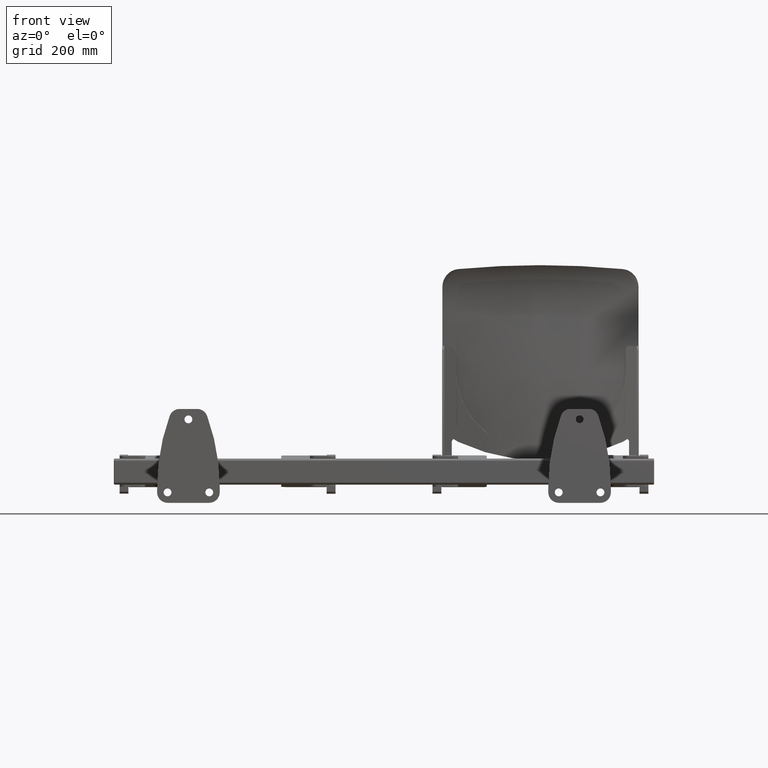
[diagram: clean part render]
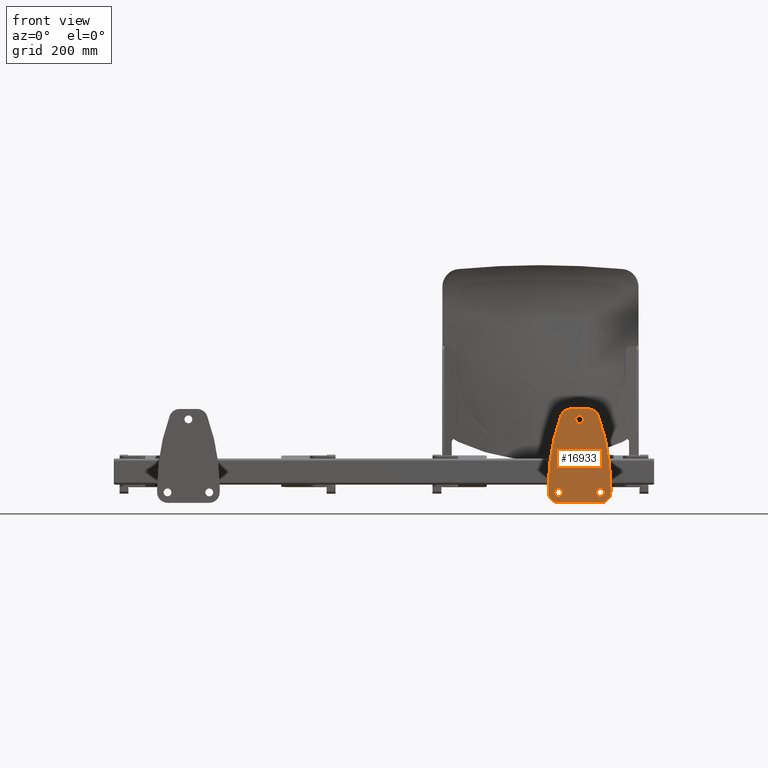
[diagram: same view with one face highlighted and labeled with its STEP entity id]
A machine part, front view. The second image highlights one B-rep face of the part: STEP entity #16933.
In plain terms, the highlighted planar face has unit normal (0, -1, 0).
Its self-contained STEP definition (entity closure, byte-faithful):
#17 = AXIS2_PLACEMENT_3D ( 'NONE', #12867, #12868, #12874 ) ;
#538 = CARTESIAN_POINT ( 'NONE',  ( 415.0000000000000600, 0.0000000000000000000, -39.99999999999992200 ) ) ;
#539 = DIRECTION ( 'NONE',  ( 0.0000000000000000000, -1.000000000000000000, -0.0000000000000000000 ) ) ;
#540 = DIRECTION ( 'NONE',  ( 0.0000000000000000000, 0.0000000000000000000, -1.000000000000000000 ) ) ;
#554 = CARTESIAN_POINT ( 'NONE',  ( 334.9999999999999400, 0.0000000000000000000, -39.99999999999993600 ) ) ;
#555 = DIRECTION ( 'NONE',  ( 0.0000000000000000000, -1.000000000000000000, -0.0000000000000000000 ) ) ;
#556 = DIRECTION ( 'NONE',  ( 0.0000000000000000000, 0.0000000000000000000, -1.000000000000000000 ) ) ;
#1703 = FACE_BOUND ( 'NONE', #14788, .T. ) ;
#1708 = FACE_BOUND ( 'NONE', #14633, .T. ) ;
#1709 = FACE_OUTER_BOUND ( 'NONE', #14313, .T. ) ;
#1710 = FACE_BOUND ( 'NONE', #14631, .T. ) ;
#2066 = CARTESIAN_POINT ( 'NONE',  ( 314.9999999999999400, 0.0000000000000000000, -60.00000000000002800 ) ) ;
#2068 = DIRECTION ( 'NONE',  ( -1.000000000000000000, -0.0000000000000000000, 2.312964634635741000E-016 ) ) ;
#2073 = CARTESIAN_POINT ( 'NONE',  ( 375.0000000000000000, 0.0000000000000000000, 100.0000000000000000 ) ) ;
#2074 = DIRECTION ( 'NONE',  ( 0.0000000000000000000, -1.000000000000000000, -0.0000000000000000000 ) ) ;
#2075 = DIRECTION ( 'NONE',  ( 0.0000000000000000000, 0.0000000000000000000, -1.000000000000000000 ) ) ;
#2390 = CARTESIAN_POINT ( 'NONE',  ( 315.0000000000000000, 0.0000000000000000000, 119.9999999999999700 ) ) ;
#2399 = DIRECTION ( 'NONE',  ( 3.083952846180990800E-016, -0.0000000000000000000, 1.000000000000000000 ) ) ;
#2424 = CARTESIAN_POINT ( 'NONE',  ( 315.0000000000000000, 0.0000000000000000000, 119.9999999999999700 ) ) ;
#2425 = DIRECTION ( 'NONE',  ( 1.000000000000000000, 0.0000000000000000000, -2.312964634635743000E-016 ) ) ;
#6166 = LINE ( 'NONE', #2390, #6196 ) ;
#6196 = VECTOR ( 'NONE', #2399, 1000.000000000000000 ) ;
#6253 = LINE ( 'NONE', #2424, #6257 ) ;
#6257 = VECTOR ( 'NONE', #2425, 1000.000000000000000 ) ;
#7385 = CARTESIAN_POINT ( 'NONE',  ( 715.0000000000000000, 0.0000000000000000000, -29.99999999999995700 ) ) ;
#7386 = DIRECTION ( 'NONE',  ( -0.0000000000000000000, 1.000000000000000000, 0.0000000000000000000 ) ) ;
#7387 = DIRECTION ( 'NONE',  ( 0.0000000000000000000, 0.0000000000000000000, -1.000000000000000000 ) ) ;
#7388 = CARTESIAN_POINT ( 'NONE',  ( 357.9285785728573600, 0.0000000000000000000, 99.99999999999995700 ) ) ;
#7389 = DIRECTION ( 'NONE',  ( 0.0000000000000000000, -1.000000000000000000, -0.0000000000000000000 ) ) ;
#7390 = DIRECTION ( 'NONE',  ( 0.0000000000000000000, 0.0000000000000000000, -1.000000000000000000 ) ) ;
#7391 = CARTESIAN_POINT ( 'NONE',  ( 392.0714214271425800, 0.0000000000000000000, 99.99999999999992900 ) ) ;
#7392 = DIRECTION ( 'NONE',  ( 0.0000000000000000000, -1.000000000000000000, -0.0000000000000000000 ) ) ;
#7393 = DIRECTION ( 'NONE',  ( 0.0000000000000000000, 0.0000000000000000000, -1.000000000000000000 ) ) ;
#7394 = CARTESIAN_POINT ( 'NONE',  ( 35.00000000000002800, 0.0000000000000000000, -29.99999999999994300 ) ) ;
#7395 = DIRECTION ( 'NONE',  ( -0.0000000000000000000, 1.000000000000000000, 0.0000000000000000000 ) ) ;
#7396 = DIRECTION ( 'NONE',  ( -2.671474153004282900E-015, 0.0000000000000000000, -1.000000000000000000 ) ) ;
#7397 = CARTESIAN_POINT ( 'NONE',  ( 415.0000000000000600, 0.0000000000000000000, -40.00000000000004300 ) ) ;
#7398 = DIRECTION ( 'NONE',  ( 0.0000000000000000000, -1.000000000000000000, -0.0000000000000000000 ) ) ;
#7399 = DIRECTION ( 'NONE',  ( 0.0000000000000000000, 0.0000000000000000000, -1.000000000000000000 ) ) ;
#7400 = CARTESIAN_POINT ( 'NONE',  ( 334.9999999999999400, 0.0000000000000000000, -40.00000000000000700 ) ) ;
#7401 = DIRECTION ( 'NONE',  ( 0.0000000000000000000, -1.000000000000000000, -0.0000000000000000000 ) ) ;
#7402 = DIRECTION ( 'NONE',  ( 0.0000000000000000000, 0.0000000000000000000, -1.000000000000000000 ) ) ;
#7405 = CARTESIAN_POINT ( 'NONE',  ( 415.0000000000000600, 0.0000000000000000000, -39.99999999999992200 ) ) ;
#7406 = DIRECTION ( 'NONE',  ( 0.0000000000000000000, -1.000000000000000000, -0.0000000000000000000 ) ) ;
#7407 = DIRECTION ( 'NONE',  ( 0.0000000000000000000, 0.0000000000000000000, -1.000000000000000000 ) ) ;
#7410 = CARTESIAN_POINT ( 'NONE',  ( 334.9999999999999400, 0.0000000000000000000, -39.99999999999993600 ) ) ;
#7411 = DIRECTION ( 'NONE',  ( 0.0000000000000000000, -1.000000000000000000, -0.0000000000000000000 ) ) ;
#7412 = DIRECTION ( 'NONE',  ( 0.0000000000000000000, 0.0000000000000000000, -1.000000000000000000 ) ) ;
#8065 = LINE ( 'NONE', #10782, #8069 ) ;
#8069 = VECTOR ( 'NONE', #10784, 1000.000000000000000 ) ;
#8079 = LINE ( 'NONE', #2066, #8082 ) ;
#8082 = VECTOR ( 'NONE', #2068, 1000.000000000000000 ) ;
#8085 = CIRCLE ( 'NONE', #8449, 7.500000000000020400 ) ;
#8180 = CARTESIAN_POINT ( 'NONE',  ( 375.0000000000000000, 0.0000000000000000000, 100.0000000000000000 ) ) ;
#8181 = DIRECTION ( 'NONE',  ( 0.0000000000000000000, -1.000000000000000000, -0.0000000000000000000 ) ) ;
#8182 = DIRECTION ( 'NONE',  ( 0.0000000000000000000, 0.0000000000000000000, -1.000000000000000000 ) ) ;
#8322 = AXIS2_PLACEMENT_3D ( 'NONE', #7385, #7386, #7387 ) ;
#8323 = AXIS2_PLACEMENT_3D ( 'NONE', #7388, #7389, #7390 ) ;
#8324 = AXIS2_PLACEMENT_3D ( 'NONE', #7391, #7392, #7393 ) ;
#8325 = AXIS2_PLACEMENT_3D ( 'NONE', #7394, #7395, #7396 ) ;
#8326 = AXIS2_PLACEMENT_3D ( 'NONE', #7397, #7398, #7399 ) ;
#8327 = AXIS2_PLACEMENT_3D ( 'NONE', #7400, #7401, #7402 ) ;
#8328 = AXIS2_PLACEMENT_3D ( 'NONE', #7405, #7406, #7407 ) ;
#8329 = AXIS2_PLACEMENT_3D ( 'NONE', #7410, #7411, #7412 ) ;
#8449 = AXIS2_PLACEMENT_3D ( 'NONE', #2073, #2074, #2075 ) ;
#10782 = CARTESIAN_POINT ( 'NONE',  ( 435.0000000000000000, 0.0000000000000000000, 119.9999999999999400 ) ) ;
#10784 = DIRECTION ( 'NONE',  ( 3.083952846180990800E-016, 0.0000000000000000000, -1.000000000000000000 ) ) ;
#12867 = CARTESIAN_POINT ( 'NONE',  ( 315.0000000000000000, 0.0000000000000000000, 119.9999999999999700 ) ) ;
#12868 = DIRECTION ( 'NONE',  ( 0.0000000000000000000, -1.000000000000000000, 0.0000000000000000000 ) ) ;
#12871 = PLANE ( 'NONE',  #17 ) ;
#12874 = DIRECTION ( 'NONE',  ( 0.0000000000000000000, 0.0000000000000000000, -1.000000000000000000 ) ) ;
#13836 = CARTESIAN_POINT ( 'NONE',  ( 357.9285785728573600, 0.0000000000000000000, 119.9999999999999600 ) ) ;
#13847 = CARTESIAN_POINT ( 'NONE',  ( 314.9999999999999400, 0.0000000000000000000, -39.99999999999995000 ) ) ;
#13848 = CARTESIAN_POINT ( 'NONE',  ( 315.0000000000000600, 0.0000000000000000000, -29.99999999999983300 ) ) ;
#13849 = CARTESIAN_POINT ( 'NONE',  ( 334.9999999999999400, 0.0000000000000000000, -60.00000000000003600 ) ) ;
#13850 = CARTESIAN_POINT ( 'NONE',  ( 392.0714214271425800, 0.0000000000000000000, 119.9999999999999600 ) ) ;
#13852 = CARTESIAN_POINT ( 'NONE',  ( 435.0000000000000600, 0.0000000000000000000, -29.99999999999994300 ) ) ;
#13854 = CARTESIAN_POINT ( 'NONE',  ( 435.0000000000000600, 0.0000000000000000000, -39.99999999999997900 ) ) ;
#13855 = CARTESIAN_POINT ( 'NONE',  ( 410.8646541338343400, 0.0000000000000000000, 106.8421052631578200 ) ) ;
#13856 = CARTESIAN_POINT ( 'NONE',  ( 415.0000000000000600, 0.0000000000000000000, -60.00000000000005000 ) ) ;
#13858 = CARTESIAN_POINT ( 'NONE',  ( 339.1353458661656600, 0.0000000000000000000, 106.8421052631578300 ) ) ;
#13894 = CARTESIAN_POINT ( 'NONE',  ( 334.9999999999999400, 0.0000000000000000000, -32.49999999999992200 ) ) ;
#13895 = CARTESIAN_POINT ( 'NONE',  ( 375.0000000000000000, 0.0000000000000000000, 92.49999999999998600 ) ) ;
#13897 = CARTESIAN_POINT ( 'NONE',  ( 375.0000000000000000, 0.0000000000000000000, 107.5000000000000300 ) ) ;
#14313 = EDGE_LOOP ( 'NONE', ( #14410, #14411, #14412, #14413, #14414, #14415, #14416, #14417, #14418, #14419 ) ) ;
#14404 = ORIENTED_EDGE ( 'NONE', *, *, #15200, .F. ) ;
#14405 = ORIENTED_EDGE ( 'NONE', *, *, #16677, .F. ) ;
#14406 = ORIENTED_EDGE ( 'NONE', *, *, #15177, .F. ) ;
#14407 = ORIENTED_EDGE ( 'NONE', *, *, #15873, .F. ) ;
#14408 = ORIENTED_EDGE ( 'NONE', *, *, #15170, .F. ) ;
#14409 = ORIENTED_EDGE ( 'NONE', *, *, #15872, .F. ) ;
#14410 = ORIENTED_EDGE ( 'NONE', *, *, #16518, .F. ) ;
#14411 = ORIENTED_EDGE ( 'NONE', *, *, #15871, .T. ) ;
#14412 = ORIENTED_EDGE ( 'NONE', *, *, #16674, .F. ) ;
#14413 = ORIENTED_EDGE ( 'NONE', *, *, #15870, .T. ) ;
#14414 = ORIENTED_EDGE ( 'NONE', *, *, #16662, .F. ) ;
#14415 = ORIENTED_EDGE ( 'NONE', *, *, #15869, .F. ) ;
#14416 = ORIENTED_EDGE ( 'NONE', *, *, #15868, .T. ) ;
#14417 = ORIENTED_EDGE ( 'NONE', *, *, #16534, .F. ) ;
#14418 = ORIENTED_EDGE ( 'NONE', *, *, #15867, .T. ) ;
#14419 = ORIENTED_EDGE ( 'NONE', *, *, #15866, .F. ) ;
#14631 = EDGE_LOOP ( 'NONE', ( #14406, #14407 ) ) ;
#14633 = EDGE_LOOP ( 'NONE', ( #14404, #14405 ) ) ;
#14788 = EDGE_LOOP ( 'NONE', ( #14408, #14409 ) ) ;
#14856 = VERTEX_POINT ( 'NONE', #13836 ) ;
#14887 = VERTEX_POINT ( 'NONE', #13847 ) ;
#14888 = VERTEX_POINT ( 'NONE', #13848 ) ;
#14889 = VERTEX_POINT ( 'NONE', #13849 ) ;
#14890 = VERTEX_POINT ( 'NONE', #13850 ) ;
#14892 = VERTEX_POINT ( 'NONE', #13852 ) ;
#14894 = VERTEX_POINT ( 'NONE', #13854 ) ;
#14895 = VERTEX_POINT ( 'NONE', #13855 ) ;
#14896 = VERTEX_POINT ( 'NONE', #13856 ) ;
#14898 = VERTEX_POINT ( 'NONE', #13858 ) ;
#14934 = VERTEX_POINT ( 'NONE', #13894 ) ;
#14935 = VERTEX_POINT ( 'NONE', #13895 ) ;
#14937 = VERTEX_POINT ( 'NONE', #13897 ) ;
#14941 = VERTEX_POINT ( 'NONE', #15073 ) ;
#14942 = VERTEX_POINT ( 'NONE', #15074 ) ;
#14959 = VERTEX_POINT ( 'NONE', #15091 ) ;
#15073 = CARTESIAN_POINT ( 'NONE',  ( 415.0000000000000600, 0.0000000000000000000, -32.49999999999990800 ) ) ;
#15074 = CARTESIAN_POINT ( 'NONE',  ( 334.9999999999999400, 0.0000000000000000000, -47.49999999999995000 ) ) ;
#15091 = CARTESIAN_POINT ( 'NONE',  ( 415.0000000000000600, 0.0000000000000000000, -47.49999999999993600 ) ) ;
#15170 = EDGE_CURVE ( 'NONE', #14941, #14959, #16747, .T. ) ;
#15177 = EDGE_CURVE ( 'NONE', #14934, #14942, #16750, .T. ) ;
#15200 = EDGE_CURVE ( 'NONE', #14937, #14935, #16795, .T. ) ;
#15475 = CIRCLE ( 'NONE', #8324, 20.00000000000000400 ) ;
#15477 = CIRCLE ( 'NONE', #8322, 400.0000000000000000 ) ;
#15479 = CIRCLE ( 'NONE', #8323, 20.00000000000000400 ) ;
#15481 = CIRCLE ( 'NONE', #8325, 400.0000000000000000 ) ;
#15482 = CIRCLE ( 'NONE', #8326, 19.99999999999999600 ) ;
#15483 = CIRCLE ( 'NONE', #8327, 20.00000000000000400 ) ;
#15484 = CIRCLE ( 'NONE', #8328, 7.500000000000013300 ) ;
#15485 = CIRCLE ( 'NONE', #8329, 7.500000000000013300 ) ;
#15866 = EDGE_CURVE ( 'NONE', #14888, #14898, #15477, .T. ) ;
#15867 = EDGE_CURVE ( 'NONE', #14856, #14898, #15479, .T. ) ;
#15868 = EDGE_CURVE ( 'NONE', #14895, #14890, #15475, .T. ) ;
#15869 = EDGE_CURVE ( 'NONE', #14895, #14892, #15481, .T. ) ;
#15870 = EDGE_CURVE ( 'NONE', #14896, #14894, #15482, .T. ) ;
#15871 = EDGE_CURVE ( 'NONE', #14887, #14889, #15483, .T. ) ;
#15872 = EDGE_CURVE ( 'NONE', #14959, #14941, #15484, .T. ) ;
#15873 = EDGE_CURVE ( 'NONE', #14942, #14934, #15485, .T. ) ;
#15983 = AXIS2_PLACEMENT_3D ( 'NONE', #538, #539, #540 ) ;
#15985 = AXIS2_PLACEMENT_3D ( 'NONE', #554, #555, #556 ) ;
#15996 = AXIS2_PLACEMENT_3D ( 'NONE', #8180, #8181, #8182 ) ;
#16518 = EDGE_CURVE ( 'NONE', #14887, #14888, #6166, .T. ) ;
#16534 = EDGE_CURVE ( 'NONE', #14856, #14890, #6253, .T. ) ;
#16662 = EDGE_CURVE ( 'NONE', #14892, #14894, #8065, .T. ) ;
#16674 = EDGE_CURVE ( 'NONE', #14896, #14889, #8079, .T. ) ;
#16677 = EDGE_CURVE ( 'NONE', #14935, #14937, #8085, .T. ) ;
#16747 = CIRCLE ( 'NONE', #15983, 7.500000000000013300 ) ;
#16750 = CIRCLE ( 'NONE', #15985, 7.500000000000013300 ) ;
#16795 = CIRCLE ( 'NONE', #15996, 7.500000000000020400 ) ;
#16933 = ADVANCED_FACE ( 'NONE', ( #1708, #1710, #1703, #1709 ), #12871, .T. ) ;